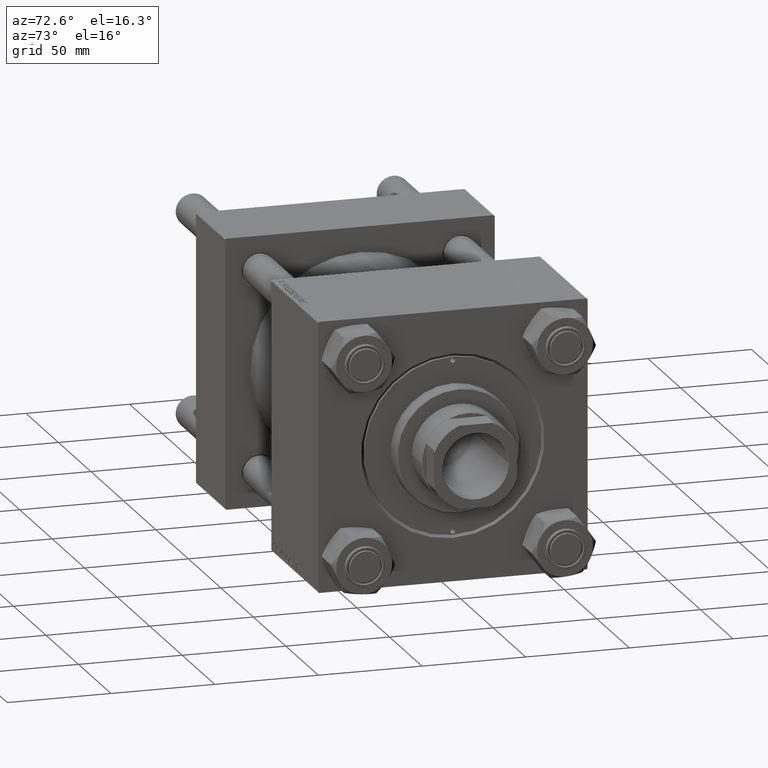
[diagram: clean part render]
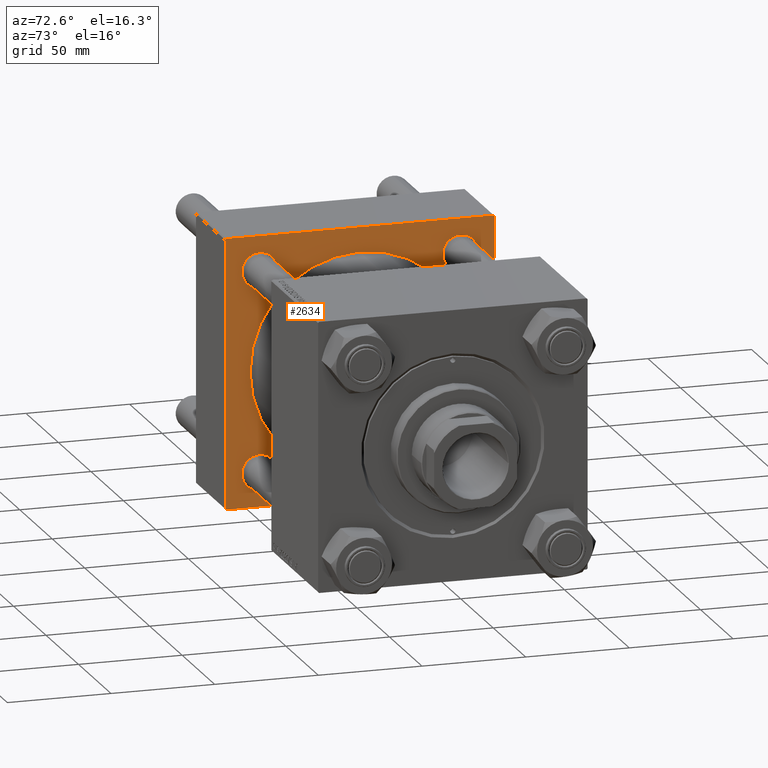
[diagram: same view with one face highlighted and labeled with its STEP entity id]
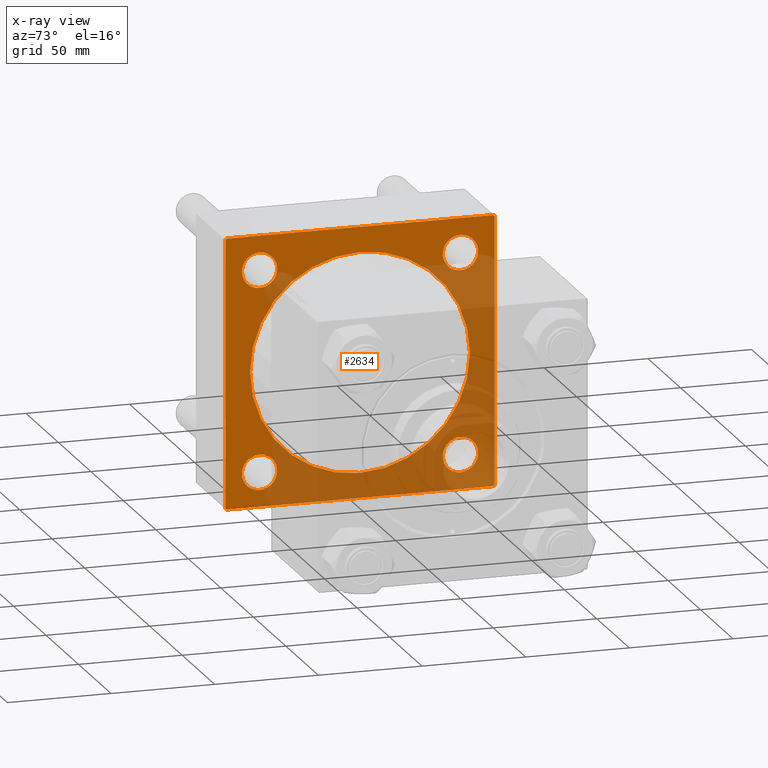
[diagram: x-ray of the same camera — body ghosted, the highlighted face saturated]
A machine part, auxiliary view. The second image highlights one B-rep face of the part: STEP entity #2634.
The next image is the same camera in x-ray: the body ghosted, the highlighted face saturated — about 49% of this face is hidden behind the body in this view.
In plain terms, the highlighted planar face has unit normal (-1, 0, 0).
Its self-contained STEP definition (entity closure, byte-faithful):
#282 = EDGE_LOOP ( 'NONE', ( #16262, #30129 ) ) ;
#370 = VERTEX_POINT ( 'NONE', #15163 ) ;
#1079 = CARTESIAN_POINT ( 'NONE',  ( 45.00000000000000000, 65.00000000000000000, 65.00000000000001421 ) ) ;
#1281 = DIRECTION ( 'NONE',  ( -1.000000000000000000, 0.000000000000000000, -0.000000000000000000 ) ) ;
#1797 = DIRECTION ( 'NONE',  ( -0.000000000000000000, 0.000000000000000000, 1.000000000000000000 ) ) ;
#2448 = CARTESIAN_POINT ( 'NONE',  ( 45.00000000000000000, 48.45000000000000995, 39.95000000000003126 ) ) ;
#2634 = ADVANCED_FACE ( 'NONE', ( #36432, #31846, #44074, #13252, #28019, #12745 ), #9175, .F. ) ;
#3476 = CIRCLE ( 'NONE', #8368, 8.499999999999980460 ) ;
#3608 = DIRECTION ( 'NONE',  ( -1.000000000000000000, 0.000000000000000000, -0.000000000000000000 ) ) ;
#4225 = DIRECTION ( 'NONE',  ( -1.000000000000000000, 0.000000000000000000, -0.000000000000000000 ) ) ;
#4244 = CARTESIAN_POINT ( 'NONE',  ( 45.00000000000000000, 48.45000000000000995, -39.95000000000003126 ) ) ;
#4569 = DIRECTION ( 'NONE',  ( -1.000000000000000000, 0.000000000000000000, -0.000000000000000000 ) ) ;
#4731 = CARTESIAN_POINT ( 'NONE',  ( 45.00000000000000000, -48.44999999999999574, -48.45000000000003126 ) ) ;
#5383 = EDGE_CURVE ( 'NONE', #47500, #44052, #43987, .T. ) ;
#5557 = CIRCLE ( 'NONE', #34007, 8.499999999999980460 ) ;
#5663 = VECTOR ( 'NONE', #19605, 1000.000000000000000 ) ;
#5665 = DIRECTION ( 'NONE',  ( 0.000000000000000000, 0.000000000000000000, -1.000000000000000000 ) ) ;
#5740 = AXIS2_PLACEMENT_3D ( 'NONE', #28915, #21285, #33493 ) ;
#5835 = VERTEX_POINT ( 'NONE', #18277 ) ;
#6623 = DIRECTION ( 'NONE',  ( 0.000000000000000000, -0.7071067811865474617, 0.7071067811865474617 ) ) ;
#7246 = ORIENTED_EDGE ( 'NONE', *, *, #24651, .F. ) ;
#8078 = DIRECTION ( 'NONE',  ( 1.000000000000000000, -0.000000000000000000, 0.000000000000000000 ) ) ;
#8368 = AXIS2_PLACEMENT_3D ( 'NONE', #22309, #25634, #10591 ) ;
#9175 = PLANE ( 'NONE',  #34907 ) ;
#9730 = LINE ( 'NONE', #1079, #18126 ) ;
#10591 = DIRECTION ( 'NONE',  ( 0.000000000000000000, 0.000000000000000000, 1.000000000000000000 ) ) ;
#10965 = DIRECTION ( 'NONE',  ( -1.000000000000000000, 0.000000000000000000, -0.000000000000000000 ) ) ;
#12600 = EDGE_CURVE ( 'NONE', #30693, #30250, #39204, .T. ) ;
#12622 = CARTESIAN_POINT ( 'NONE',  ( 45.00000000000000000, -48.44999999999999574, -56.95000000000000995 ) ) ;
#12709 = VECTOR ( 'NONE', #37926, 1000.000000000000114 ) ;
#12745 = FACE_OUTER_BOUND ( 'NONE', #24401, .T. ) ;
#12905 = VERTEX_POINT ( 'NONE', #4244 ) ;
#12939 = DIRECTION ( 'NONE',  ( 0.000000000000000000, 0.000000000000000000, 1.000000000000000000 ) ) ;
#13252 = FACE_BOUND ( 'NONE', #34196, .T. ) ;
#13401 = VECTOR ( 'NONE', #15025, 1000.000000000000000 ) ;
#13650 = DIRECTION ( 'NONE',  ( 0.000000000000000000, 0.000000000000000000, 1.000000000000000000 ) ) ;
#14316 = DIRECTION ( 'NONE',  ( 0.000000000000000000, 0.000000000000000000, 1.000000000000000000 ) ) ;
#14392 = EDGE_CURVE ( 'NONE', #45028, #17924, #9730, .T. ) ;
#14416 = LINE ( 'NONE', #31378, #17558 ) ;
#15025 = DIRECTION ( 'NONE',  ( 0.000000000000000000, 0.000000000000000000, -1.000000000000000000 ) ) ;
#15036 = EDGE_CURVE ( 'NONE', #49974, #27878, #3476, .T. ) ;
#15163 = CARTESIAN_POINT ( 'NONE',  ( 45.00000000000000000, 6.490628035480973107E-15, -53.00000000000000711 ) ) ;
#15499 = CARTESIAN_POINT ( 'NONE',  ( 45.00000000000000000, 48.45000000000000995, -48.45000000000001705 ) ) ;
#15921 = EDGE_CURVE ( 'NONE', #45028, #30693, #41524, .T. ) ;
#16004 = CIRCLE ( 'NONE', #42824, 53.00000000000000711 ) ;
#16262 = ORIENTED_EDGE ( 'NONE', *, *, #30808, .T. ) ;
#16345 = ORIENTED_EDGE ( 'NONE', *, *, #23718, .F. ) ;
#16448 = CARTESIAN_POINT ( 'NONE',  ( 45.00000000000000000, 64.49999999999997158, 65.00000000000001421 ) ) ;
#16535 = CARTESIAN_POINT ( 'NONE',  ( 45.00000000000000000, 65.00000000000000000, 65.00000000000001421 ) ) ;
#16546 = ORIENTED_EDGE ( 'NONE', *, *, #22548, .T. ) ;
#16628 = AXIS2_PLACEMENT_3D ( 'NONE', #36410, #4569, #47874 ) ;
#16674 = ORIENTED_EDGE ( 'NONE', *, *, #23238, .T. ) ;
#16853 = AXIS2_PLACEMENT_3D ( 'NONE', #44009, #24395, #12939 ) ;
#17081 = CARTESIAN_POINT ( 'NONE',  ( 45.00000000000000000, 0.000000000000000000, 0.000000000000000000 ) ) ;
#17250 = VERTEX_POINT ( 'NONE', #2448 ) ;
#17558 = VECTOR ( 'NONE', #35194, 1000.000000000000000 ) ;
#17823 = LINE ( 'NONE', #49881, #33857 ) ;
#17924 = VERTEX_POINT ( 'NONE', #49536 ) ;
#18126 = VECTOR ( 'NONE', #5665, 1000.000000000000000 ) ;
#18277 = CARTESIAN_POINT ( 'NONE',  ( 45.00000000000000000, 48.45000000000000995, 56.94999999999999574 ) ) ;
#18326 = LINE ( 'NONE', #25713, #12709 ) ;
#18553 = EDGE_CURVE ( 'NONE', #44052, #47500, #26359, .T. ) ;
#18808 = CARTESIAN_POINT ( 'NONE',  ( 45.00000000000000000, -65.00000000000000000, 64.50000000000000000 ) ) ;
#19128 = CIRCLE ( 'NONE', #40320, 8.499999999999980460 ) ;
#19218 = EDGE_CURVE ( 'NONE', #41271, #45434, #23677, .T. ) ;
#19324 = DIRECTION ( 'NONE',  ( -1.000000000000000000, 0.000000000000000000, -0.000000000000000000 ) ) ;
#19605 = DIRECTION ( 'NONE',  ( 0.000000000000000000, -1.000000000000000000, -1.067522139062650425E-16 ) ) ;
#19662 = ORIENTED_EDGE ( 'NONE', *, *, #36022, .T. ) ;
#19849 = VERTEX_POINT ( 'NONE', #49318 ) ;
#20169 = EDGE_LOOP ( 'NONE', ( #19662, #22616 ) ) ;
#20272 = DIRECTION ( 'NONE',  ( 0.000000000000000000, 0.000000000000000000, 1.000000000000000000 ) ) ;
#21285 = DIRECTION ( 'NONE',  ( -1.000000000000000000, 0.000000000000000000, -0.000000000000000000 ) ) ;
#21317 = VERTEX_POINT ( 'NONE', #34146 ) ;
#21659 = ORIENTED_EDGE ( 'NONE', *, *, #39280, .T. ) ;
#22309 = CARTESIAN_POINT ( 'NONE',  ( 45.00000000000000000, -48.44999999999999574, -48.45000000000003126 ) ) ;
#22548 = EDGE_CURVE ( 'NONE', #30250, #41271, #17823, .T. ) ;
#22616 = ORIENTED_EDGE ( 'NONE', *, *, #44425, .T. ) ;
#23223 = DIRECTION ( 'NONE',  ( 0.000000000000000000, 0.000000000000000000, 1.000000000000000000 ) ) ;
#23238 = EDGE_CURVE ( 'NONE', #5835, #17250, #30572, .T. ) ;
#23677 = LINE ( 'NONE', #43283, #13401 ) ;
#23718 = EDGE_CURVE ( 'NONE', #32648, #370, #16004, .T. ) ;
#24395 = DIRECTION ( 'NONE',  ( 1.000000000000000000, -0.000000000000000000, 0.000000000000000000 ) ) ;
#24401 = EDGE_LOOP ( 'NONE', ( #37521, #42233, #38256, #36465, #41341, #16546, #32313, #21659 ) ) ;
#24651 = EDGE_CURVE ( 'NONE', #370, #32648, #32307, .T. ) ;
#25464 = VECTOR ( 'NONE', #46845, 1000.000000000000000 ) ;
#25634 = DIRECTION ( 'NONE',  ( -1.000000000000000000, 0.000000000000000000, -0.000000000000000000 ) ) ;
#25713 = CARTESIAN_POINT ( 'NONE',  ( 45.00000000000000000, 65.00000000000000000, -64.49999999999995737 ) ) ;
#25987 = CARTESIAN_POINT ( 'NONE',  ( 45.00000000000000000, 64.49999999999997158, 65.00000000000001421 ) ) ;
#26359 = CIRCLE ( 'NONE', #16628, 8.499999999999980460 ) ;
#26438 = EDGE_LOOP ( 'NONE', ( #16345, #7246 ) ) ;
#26613 = AXIS2_PLACEMENT_3D ( 'NONE', #15499, #19324, #34858 ) ;
#27440 = CARTESIAN_POINT ( 'NONE',  ( 45.00000000000000000, 0.000000000000000000, 0.000000000000000000 ) ) ;
#27552 = CARTESIAN_POINT ( 'NONE',  ( 45.00000000000000000, 48.45000000000000995, 48.45000000000001705 ) ) ;
#27878 = VERTEX_POINT ( 'NONE', #12622 ) ;
#28019 = FACE_BOUND ( 'NONE', #26438, .T. ) ;
#28915 = CARTESIAN_POINT ( 'NONE',  ( 45.00000000000000000, -48.44999999999999574, 48.45000000000003126 ) ) ;
#29765 = ORIENTED_EDGE ( 'NONE', *, *, #5383, .T. ) ;
#30129 = ORIENTED_EDGE ( 'NONE', *, *, #15036, .T. ) ;
#30250 = VERTEX_POINT ( 'NONE', #30282 ) ;
#30282 = CARTESIAN_POINT ( 'NONE',  ( 45.00000000000000000, -64.49999999999997158, 65.00000000000000000 ) ) ;
#30572 = CIRCLE ( 'NONE', #33032, 8.499999999999980460 ) ;
#30693 = VERTEX_POINT ( 'NONE', #16448 ) ;
#30808 = EDGE_CURVE ( 'NONE', #27878, #49974, #43018, .T. ) ;
#31156 = VECTOR ( 'NONE', #6623, 1000.000000000000114 ) ;
#31378 = CARTESIAN_POINT ( 'NONE',  ( 45.00000000000000000, -64.49999999999994316, -65.00000000000000000 ) ) ;
#31652 = AXIS2_PLACEMENT_3D ( 'NONE', #4731, #4225, #20272 ) ;
#31846 = FACE_BOUND ( 'NONE', #20169, .T. ) ;
#32307 = CIRCLE ( 'NONE', #16853, 53.00000000000000711 ) ;
#32313 = ORIENTED_EDGE ( 'NONE', *, *, #19218, .T. ) ;
#32648 = VERTEX_POINT ( 'NONE', #40374 ) ;
#32853 = ORIENTED_EDGE ( 'NONE', *, *, #46176, .T. ) ;
#33032 = AXIS2_PLACEMENT_3D ( 'NONE', #33676, #10965, #14316 ) ;
#33453 = EDGE_LOOP ( 'NONE', ( #47319, #29765 ) ) ;
#33493 = DIRECTION ( 'NONE',  ( 0.000000000000000000, 0.000000000000000000, 1.000000000000000000 ) ) ;
#33676 = CARTESIAN_POINT ( 'NONE',  ( 45.00000000000000000, 48.45000000000000995, 48.45000000000001705 ) ) ;
#33857 = VECTOR ( 'NONE', #45563, 1000.000000000000000 ) ;
#34007 = AXIS2_PLACEMENT_3D ( 'NONE', #27552, #3608, #23223 ) ;
#34146 = CARTESIAN_POINT ( 'NONE',  ( 45.00000000000000000, 64.49999999999997158, -64.99999999999998579 ) ) ;
#34196 = EDGE_LOOP ( 'NONE', ( #32853, #16674 ) ) ;
#34336 = CARTESIAN_POINT ( 'NONE',  ( 45.00000000000000000, -48.44999999999999574, 56.95000000000000995 ) ) ;
#34858 = DIRECTION ( 'NONE',  ( 0.000000000000000000, 0.000000000000000000, 1.000000000000000000 ) ) ;
#34907 = AXIS2_PLACEMENT_3D ( 'NONE', #17081, #1281, #1797 ) ;
#35194 = DIRECTION ( 'NONE',  ( 0.000000000000000000, 0.7071067811865279218, -0.7071067811865671127 ) ) ;
#35906 = CARTESIAN_POINT ( 'NONE',  ( 45.00000000000000000, -48.44999999999999574, -39.95000000000004547 ) ) ;
#36022 = EDGE_CURVE ( 'NONE', #19849, #12905, #19128, .T. ) ;
#36410 = CARTESIAN_POINT ( 'NONE',  ( 45.00000000000000000, -48.44999999999999574, 48.45000000000003126 ) ) ;
#36432 = FACE_BOUND ( 'NONE', #282, .T. ) ;
#36465 = ORIENTED_EDGE ( 'NONE', *, *, #15921, .T. ) ;
#37202 = CARTESIAN_POINT ( 'NONE',  ( 45.00000000000000000, -64.49999999999994316, -65.00000000000000000 ) ) ;
#37521 = ORIENTED_EDGE ( 'NONE', *, *, #49952, .F. ) ;
#37926 = DIRECTION ( 'NONE',  ( -0.000000000000000000, 0.7071067811865474617, 0.7071067811865474617 ) ) ;
#38256 = ORIENTED_EDGE ( 'NONE', *, *, #14392, .F. ) ;
#38647 = DIRECTION ( 'NONE',  ( 0.000000000000000000, 0.000000000000000000, 1.000000000000000000 ) ) ;
#38964 = LINE ( 'NONE', #47619, #5663 ) ;
#39204 = LINE ( 'NONE', #16535, #25464 ) ;
#39280 = EDGE_CURVE ( 'NONE', #45434, #44123, #14416, .T. ) ;
#39716 = CARTESIAN_POINT ( 'NONE',  ( 45.00000000000000000, -65.00000000000000000, -64.49999999999991473 ) ) ;
#40320 = AXIS2_PLACEMENT_3D ( 'NONE', #45463, #41884, #13650 ) ;
#40374 = CARTESIAN_POINT ( 'NONE',  ( 45.00000000000000000, 0.000000000000000000, 53.00000000000000711 ) ) ;
#41271 = VERTEX_POINT ( 'NONE', #18808 ) ;
#41341 = ORIENTED_EDGE ( 'NONE', *, *, #12600, .T. ) ;
#41524 = LINE ( 'NONE', #25987, #31156 ) ;
#41884 = DIRECTION ( 'NONE',  ( -1.000000000000000000, 0.000000000000000000, -0.000000000000000000 ) ) ;
#41936 = EDGE_CURVE ( 'NONE', #21317, #17924, #18326, .T. ) ;
#42233 = ORIENTED_EDGE ( 'NONE', *, *, #41936, .T. ) ;
#42824 = AXIS2_PLACEMENT_3D ( 'NONE', #27440, #8078, #38647 ) ;
#43018 = CIRCLE ( 'NONE', #31652, 8.499999999999980460 ) ;
#43283 = CARTESIAN_POINT ( 'NONE',  ( 45.00000000000000000, -65.00000000000000000, 65.00000000000000000 ) ) ;
#43987 = CIRCLE ( 'NONE', #5740, 8.499999999999980460 ) ;
#44009 = CARTESIAN_POINT ( 'NONE',  ( 45.00000000000000000, 0.000000000000000000, 0.000000000000000000 ) ) ;
#44052 = VERTEX_POINT ( 'NONE', #44840 ) ;
#44074 = FACE_BOUND ( 'NONE', #33453, .T. ) ;
#44123 = VERTEX_POINT ( 'NONE', #37202 ) ;
#44425 = EDGE_CURVE ( 'NONE', #12905, #19849, #49395, .T. ) ;
#44840 = CARTESIAN_POINT ( 'NONE',  ( 45.00000000000000000, -48.44999999999999574, 39.95000000000004547 ) ) ;
#45028 = VERTEX_POINT ( 'NONE', #48419 ) ;
#45434 = VERTEX_POINT ( 'NONE', #39716 ) ;
#45463 = CARTESIAN_POINT ( 'NONE',  ( 45.00000000000000000, 48.45000000000000995, -48.45000000000001705 ) ) ;
#45563 = DIRECTION ( 'NONE',  ( -0.000000000000000000, -0.7071067811865672237, -0.7071067811865279218 ) ) ;
#46176 = EDGE_CURVE ( 'NONE', #17250, #5835, #5557, .T. ) ;
#46845 = DIRECTION ( 'NONE',  ( 0.000000000000000000, -1.000000000000000000, -1.067522139062650425E-16 ) ) ;
#47319 = ORIENTED_EDGE ( 'NONE', *, *, #18553, .T. ) ;
#47500 = VERTEX_POINT ( 'NONE', #34336 ) ;
#47619 = CARTESIAN_POINT ( 'NONE',  ( 45.00000000000000000, 65.00000000000000000, -64.99999999999998579 ) ) ;
#47874 = DIRECTION ( 'NONE',  ( 0.000000000000000000, 0.000000000000000000, 1.000000000000000000 ) ) ;
#48419 = CARTESIAN_POINT ( 'NONE',  ( 45.00000000000000000, 65.00000000000000000, 64.49999999999998579 ) ) ;
#49318 = CARTESIAN_POINT ( 'NONE',  ( 45.00000000000000000, 48.45000000000000995, -56.94999999999999574 ) ) ;
#49395 = CIRCLE ( 'NONE', #26613, 8.499999999999980460 ) ;
#49536 = CARTESIAN_POINT ( 'NONE',  ( 45.00000000000000000, 65.00000000000000000, -64.49999999999995737 ) ) ;
#49881 = CARTESIAN_POINT ( 'NONE',  ( 45.00000000000000000, -65.00000000000000000, 64.50000000000000000 ) ) ;
#49952 = EDGE_CURVE ( 'NONE', #21317, #44123, #38964, .T. ) ;
#49974 = VERTEX_POINT ( 'NONE', #35906 ) ;